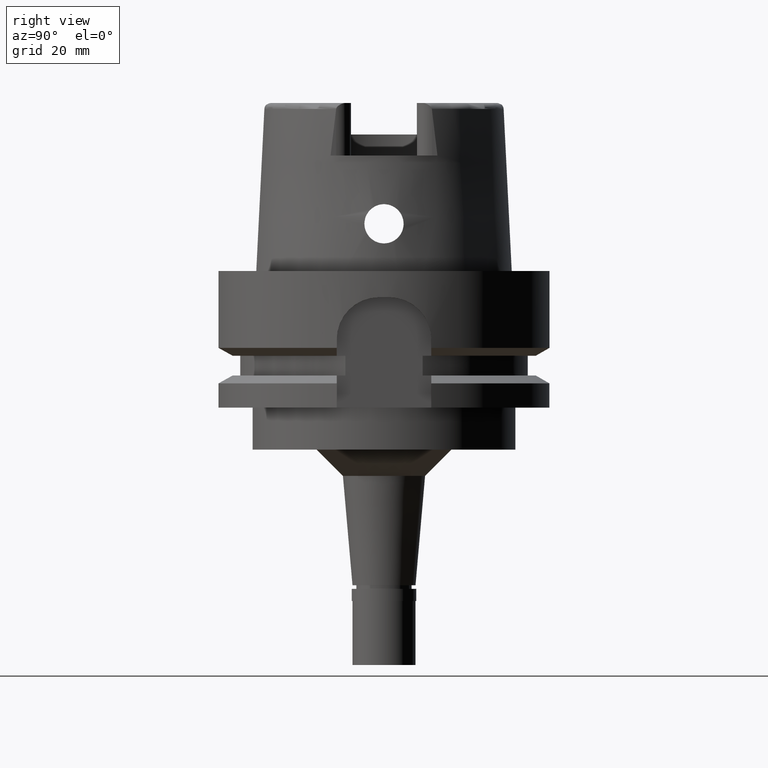
[diagram: clean part render]
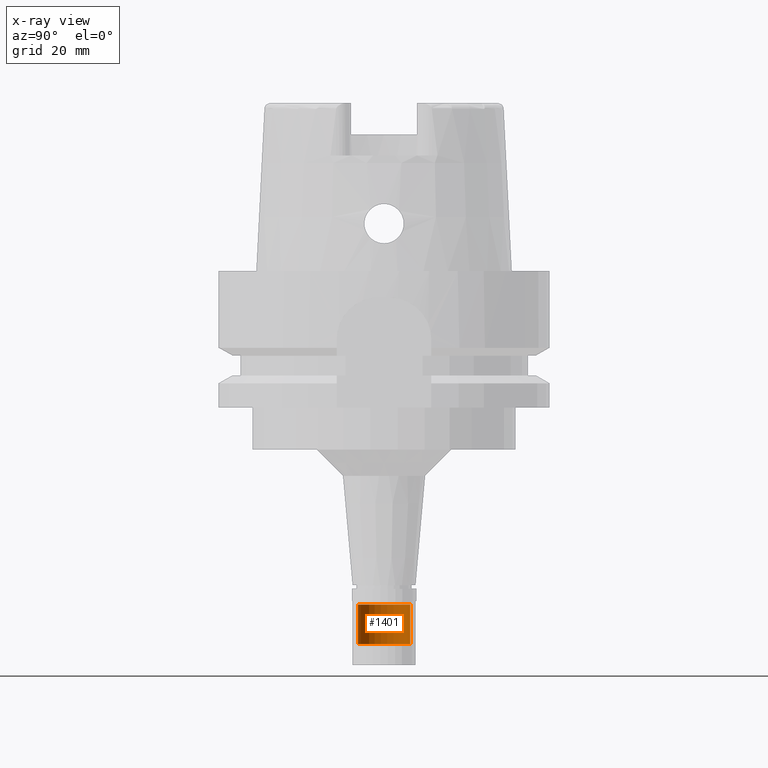
[diagram: x-ray — body ghosted, one internal face saturated and labeled with its STEP entity id]
A machine part, right view, then the same camera in x-ray: the body is ghosted and one INTERNAL B-rep face — a face not visible from any outside direction — is saturated and labeled: STEP entity #1401.
In plain terms, the highlighted cylindrical surface (edge-blend (fillet) strip) has radius 5 mm, axis along (0, 0, -1).
Its self-contained STEP definition (entity closure, byte-faithful):
#218 = CYLINDRICAL_SURFACE ( 'NONE', #964, 5.000000000000000000 ) ;
#538 = EDGE_CURVE ( 'NONE', #4033, #3056, #2965, .T. ) ;
#603 = CIRCLE ( 'NONE', #5624, 5.000000000000000000 ) ;
#792 = CARTESIAN_POINT ( 'NONE',  ( 0.0000000000000000000, 5.000000000000000000, -63.50000000000000000 ) ) ;
#821 = CARTESIAN_POINT ( 'NONE',  ( 0.0000000000000000000, 1.679603085030999862E-14, -71.00000000000000000 ) ) ;
#964 = AXIS2_PLACEMENT_3D ( 'NONE', #1941, #5006, #2832 ) ;
#1102 = CARTESIAN_POINT ( 'NONE',  ( 0.0000000000000000000, -5.000000000000000000, -63.50000000000000000 ) ) ;
#1209 = DIRECTION ( 'NONE',  ( 0.0000000000000000000, -1.000000000000000000, 0.0000000000000000000 ) ) ;
#1262 = CARTESIAN_POINT ( 'NONE',  ( 0.0000000000000000000, 1.679603085030999862E-14, -63.50000000000000000 ) ) ;
#1401 = ADVANCED_FACE ( 'NONE', ( #1677 ), #218, .T. ) ;
#1677 = FACE_OUTER_BOUND ( 'NONE', #2921, .T. ) ;
#1763 = EDGE_CURVE ( 'NONE', #3056, #1918, #603, .T. ) ;
#1830 = LINE ( 'NONE', #1102, #3227 ) ;
#1918 = VERTEX_POINT ( 'NONE', #5192 ) ;
#1941 = CARTESIAN_POINT ( 'NONE',  ( 0.0000000000000000000, 1.679603085030999862E-14, 37.15000000000000568 ) ) ;
#2143 = ORIENTED_EDGE ( 'NONE', *, *, #538, .T. ) ;
#2416 = VECTOR ( 'NONE', #2537, 1000.000000000000000 ) ;
#2537 = DIRECTION ( 'NONE',  ( 0.0000000000000000000, 0.0000000000000000000, -1.000000000000000000 ) ) ;
#2564 = DIRECTION ( 'NONE',  ( 0.0000000000000000000, 0.0000000000000000000, 1.000000000000000000 ) ) ;
#2832 = DIRECTION ( 'NONE',  ( 0.0000000000000000000, -1.000000000000000000, 0.0000000000000000000 ) ) ;
#2861 = ORIENTED_EDGE ( 'NONE', *, *, #3333, .F. ) ;
#2921 = EDGE_LOOP ( 'NONE', ( #3279, #2861, #2954, #2143 ) ) ;
#2954 = ORIENTED_EDGE ( 'NONE', *, *, #3982, .T. ) ;
#2965 = LINE ( 'NONE', #792, #2416 ) ;
#3056 = VERTEX_POINT ( 'NONE', #5274 ) ;
#3227 = VECTOR ( 'NONE', #5046, 1000.000000000000000 ) ;
#3263 = VERTEX_POINT ( 'NONE', #4987 ) ;
#3279 = ORIENTED_EDGE ( 'NONE', *, *, #1763, .T. ) ;
#3333 = EDGE_CURVE ( 'NONE', #3263, #1918, #1830, .T. ) ;
#3603 = CARTESIAN_POINT ( 'NONE',  ( 0.0000000000000000000, 5.000000000000000000, -63.50000000000000000 ) ) ;
#3693 = AXIS2_PLACEMENT_3D ( 'NONE', #1262, #3920, #1209 ) ;
#3920 = DIRECTION ( 'NONE',  ( 0.0000000000000000000, 0.0000000000000000000, -1.000000000000000000 ) ) ;
#3982 = EDGE_CURVE ( 'NONE', #3263, #4033, #5587, .T. ) ;
#4033 = VERTEX_POINT ( 'NONE', #3603 ) ;
#4220 = DIRECTION ( 'NONE',  ( 0.0000000000000000000, 1.000000000000000000, 0.0000000000000000000 ) ) ;
#4987 = CARTESIAN_POINT ( 'NONE',  ( 0.0000000000000000000, -5.000000000000000000, -63.50000000000000000 ) ) ;
#5006 = DIRECTION ( 'NONE',  ( 0.0000000000000000000, 0.0000000000000000000, -1.000000000000000000 ) ) ;
#5046 = DIRECTION ( 'NONE',  ( 0.0000000000000000000, 0.0000000000000000000, -1.000000000000000000 ) ) ;
#5192 = CARTESIAN_POINT ( 'NONE',  ( 0.0000000000000000000, -5.000000000000000000, -71.00000000000000000 ) ) ;
#5274 = CARTESIAN_POINT ( 'NONE',  ( 0.0000000000000000000, 5.000000000000000000, -71.00000000000000000 ) ) ;
#5587 = CIRCLE ( 'NONE', #3693, 5.000000000000000000 ) ;
#5624 = AXIS2_PLACEMENT_3D ( 'NONE', #821, #2564, #4220 ) ;